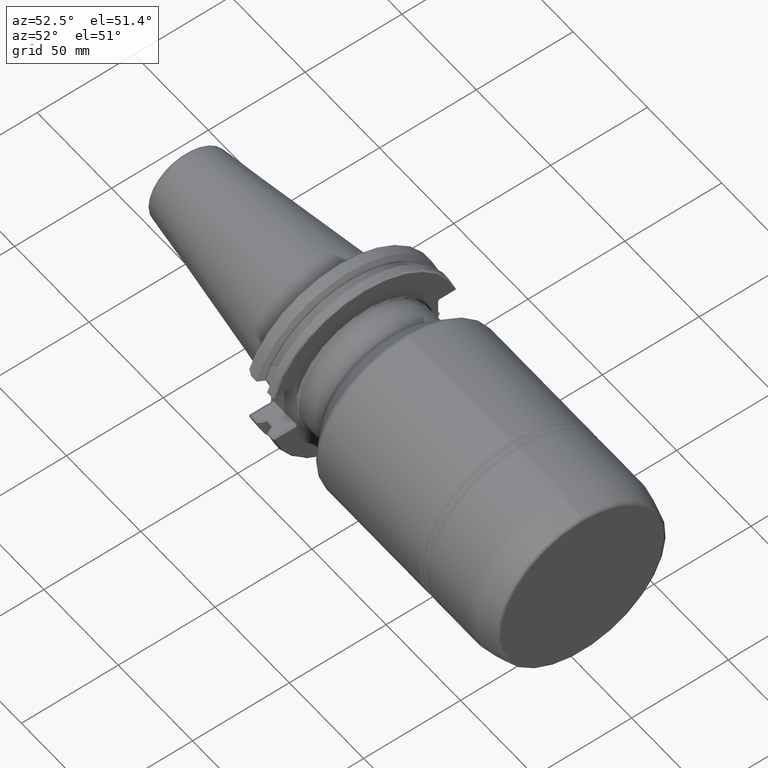
[diagram: clean part render]
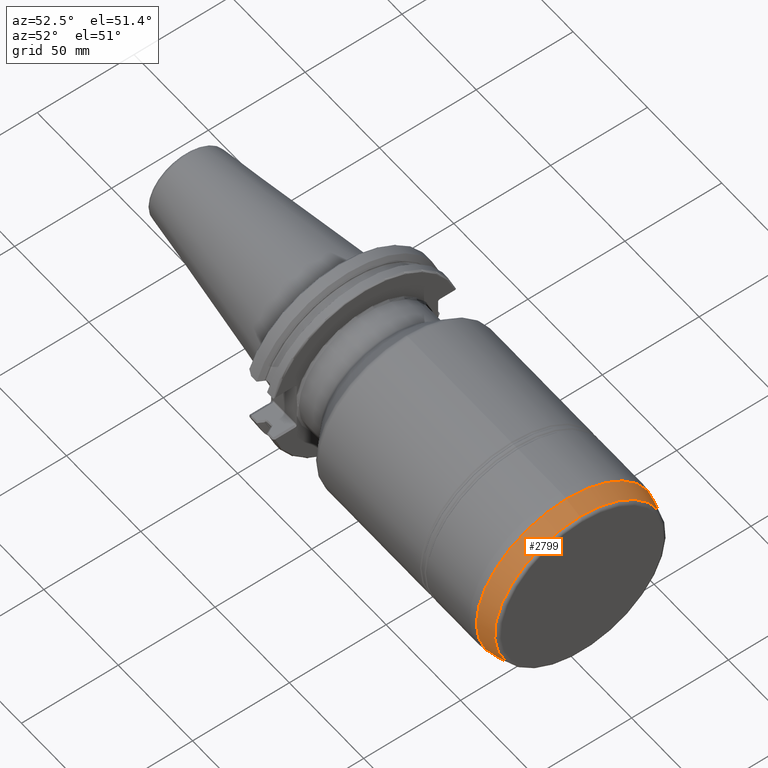
[diagram: same view with one face highlighted and labeled with its STEP entity id]
A machine part, auxiliary view. The second image highlights one B-rep face of the part: STEP entity #2799.
In plain terms, the highlighted conical surface has half-angle 15 deg.
Its self-contained STEP definition (entity closure, byte-faithful):
#303 = DIRECTION ( 'NONE',  ( -1.000000000000000000, -0.0000000000000000000, -0.0000000000000000000 ) ) ;
#728 = DIRECTION ( 'NONE',  ( -1.000000000000000000, -0.0000000000000000000, -0.0000000000000000000 ) ) ;
#753 = CARTESIAN_POINT ( 'NONE',  ( 265.2676380902114500, 0.0000000000000000000, 44.04783277122767500 ) ) ;
#822 = CIRCLE ( 'NONE', #2758, 46.48888739433058200 ) ;
#869 = FACE_BOUND ( 'NONE', #1953, .T. ) ;
#991 = CARTESIAN_POINT ( 'NONE',  ( 265.2676380902114500, 0.0000000000000000000, 0.0000000000000000000 ) ) ;
#1025 = DIRECTION ( 'NONE',  ( 0.0000000000000000000, 0.0000000000000000000, 1.000000000000000000 ) ) ;
#1150 = ORIENTED_EDGE ( 'NONE', *, *, #1828, .T. ) ;
#1166 = FACE_OUTER_BOUND ( 'NONE', #3813, .T. ) ;
#1235 = DIRECTION ( 'NONE',  ( 0.0000000000000000000, 0.0000000000000000000, 1.000000000000000000 ) ) ;
#1299 = DIRECTION ( 'NONE',  ( 0.0000000000000000000, 0.0000000000000000000, 1.000000000000000000 ) ) ;
#1598 = CIRCLE ( 'NONE', #3631, 44.04783277122767500 ) ;
#1610 = DIRECTION ( 'NONE',  ( -1.000000000000000000, -0.0000000000000000000, -0.0000000000000000000 ) ) ;
#1641 = VERTEX_POINT ( 'NONE', #753 ) ;
#1828 = EDGE_CURVE ( 'NONE', #1641, #1641, #1598, .T. ) ;
#1953 = EDGE_LOOP ( 'NONE', ( #1150 ) ) ;
#2321 = AXIS2_PLACEMENT_3D ( 'NONE', #3391, #303, #1235 ) ;
#2326 = CARTESIAN_POINT ( 'NONE',  ( 256.1574982127523900, 0.0000000000000000000, 46.48888739433058200 ) ) ;
#2370 = ORIENTED_EDGE ( 'NONE', *, *, #3404, .F. ) ;
#2729 = VERTEX_POINT ( 'NONE', #2326 ) ;
#2758 = AXIS2_PLACEMENT_3D ( 'NONE', #3428, #728, #1025 ) ;
#2799 = ADVANCED_FACE ( 'NONE', ( #1166, #869 ), #3730, .T. ) ;
#3391 = CARTESIAN_POINT ( 'NONE',  ( 265.2676380902114500, 0.0000000000000000000, 0.0000000000000000000 ) ) ;
#3404 = EDGE_CURVE ( 'NONE', #2729, #2729, #822, .T. ) ;
#3428 = CARTESIAN_POINT ( 'NONE',  ( 256.1574982127523900, 0.0000000000000000000, 0.0000000000000000000 ) ) ;
#3631 = AXIS2_PLACEMENT_3D ( 'NONE', #991, #1610, #1299 ) ;
#3730 = CONICAL_SURFACE ( 'NONE', #2321, 44.04783277122767500, 0.2617993877994769800 ) ;
#3813 = EDGE_LOOP ( 'NONE', ( #2370 ) ) ;